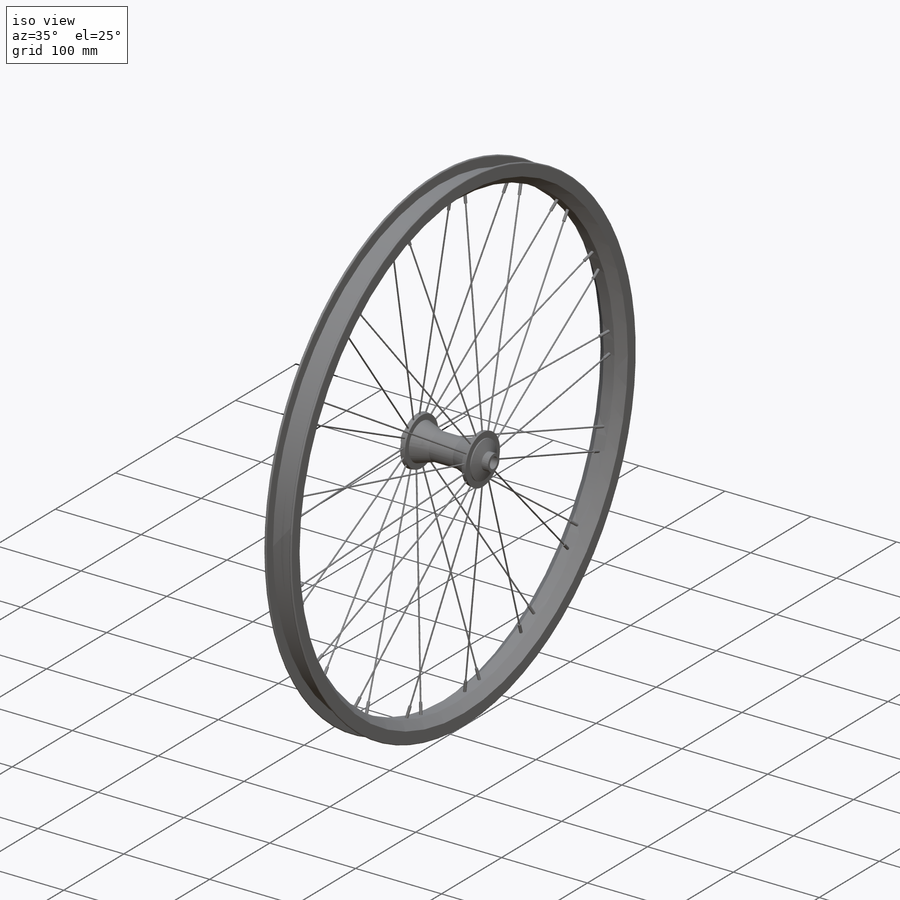
[diagram: iso view]
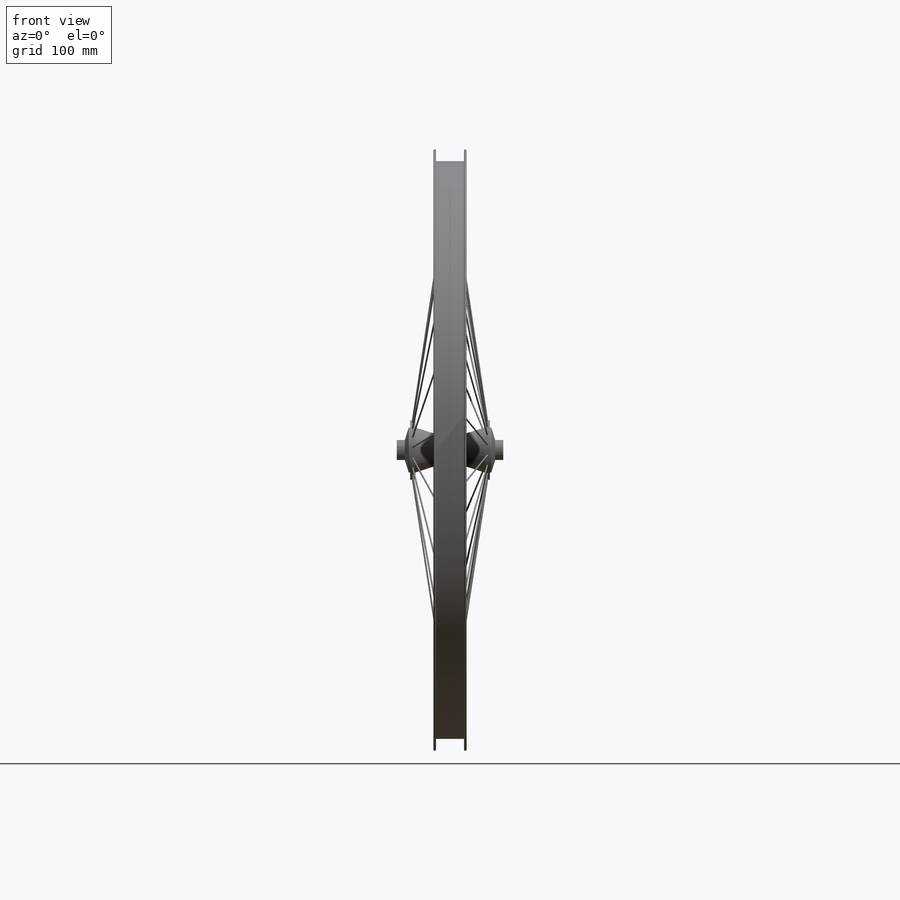
[diagram: front view]
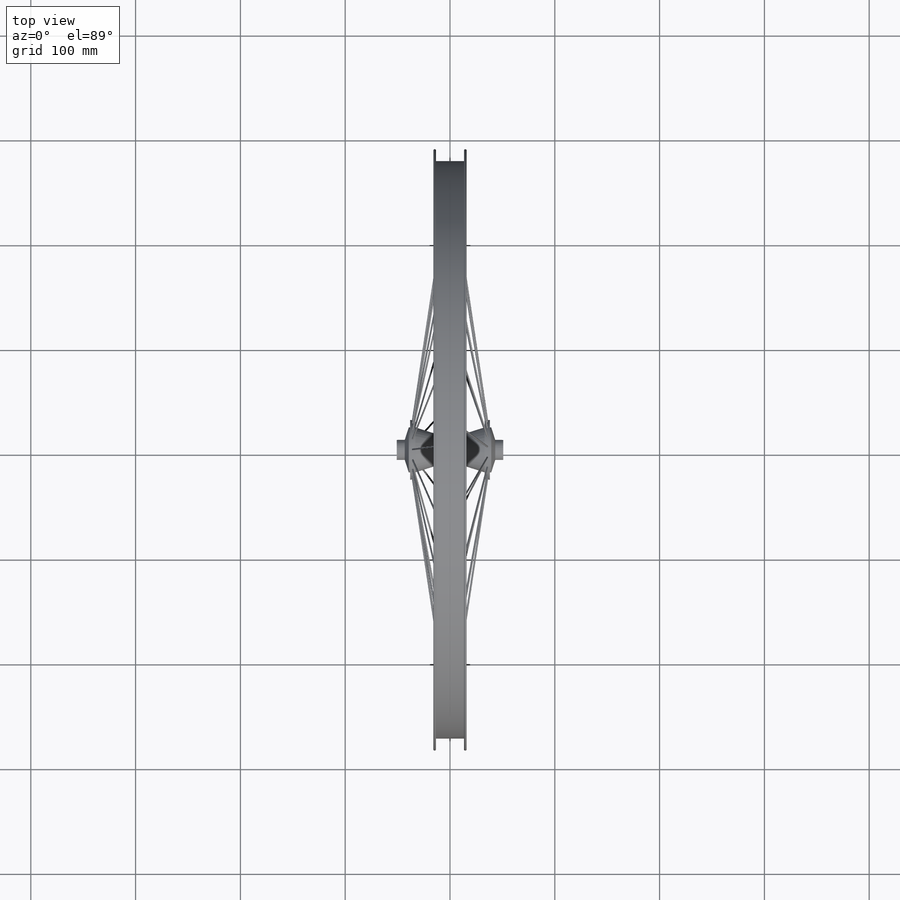
[diagram: top view]
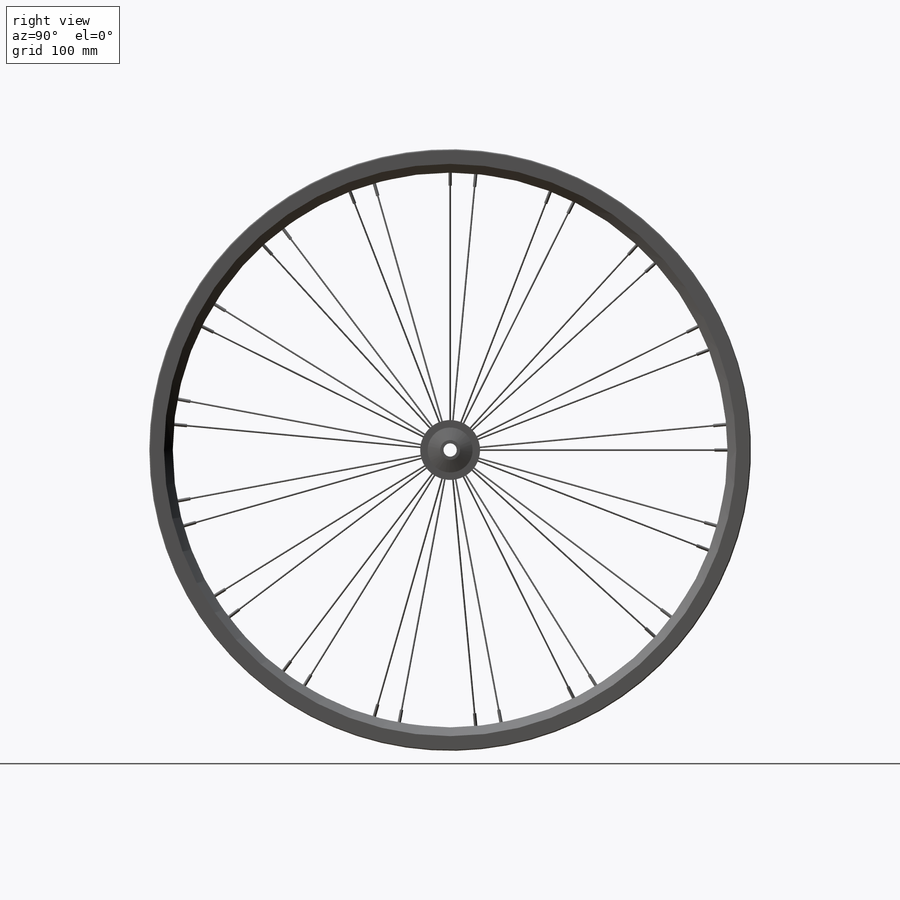
[diagram: right view]
SOLIDWORKS PART (.sldprt)
format: sldprt  version: not decoded by parser v0  size: 564,224 bytes
history: native  units: mm
features: sketch x3, revolve x3, material x1, pattern_circular x1 (+11 scaffold rows collapsed)
feature tree (19):
  scaffold x11  (default folders/planes/origin — collapsed)
  material  "Material <not specified>"
  sketch  "Sketch1"  dims[c1.D1=6.35mm c1.D2=3.175mm c1.D3=285.75mm c1.D4=12.7mm c1.D5=31.75mm c1.D6=12.7mm c1.D7=10.16mm c1.D8=2.54mm c1.D9=12.7mm c1.D10=28.575mm c1.D11=101.6mm c1.D12=28.575mm c1.D13=19.05mm c2.D10=28.575mm c2.D14=5.08mm c2.D12=76.2mm c2.D15=1.27mm c2.D16=7.62mm c2.D17=6.35mm c2.D11=101.6mm]
  revolve  "Revolve1"  Angle=360deg
  sketch  "Sketch2"  dims[c1.D1=1.5875mm c1.D2=12.7mm c1.D3=~0.474049mm c2.D3=90.0deg c3.D3=~0.79375mm]
  revolve  "Revolve2"  Angle=360deg
  sketch  "Sketch3"  dims[D1=1.5875mm D2=~0.79375mm D3=12.7mm]
  revolve  "Revolve3"  Angle=360deg
  pattern_circular  "CirPattern1"  Count=17 Angle=360deg
decode coverage: 7 of 7 modeling features carry decoded parameters
note: ~ marks probable driven/reference dimensions
note: suppression state not decoded; provenance and decode notes live in map.json
